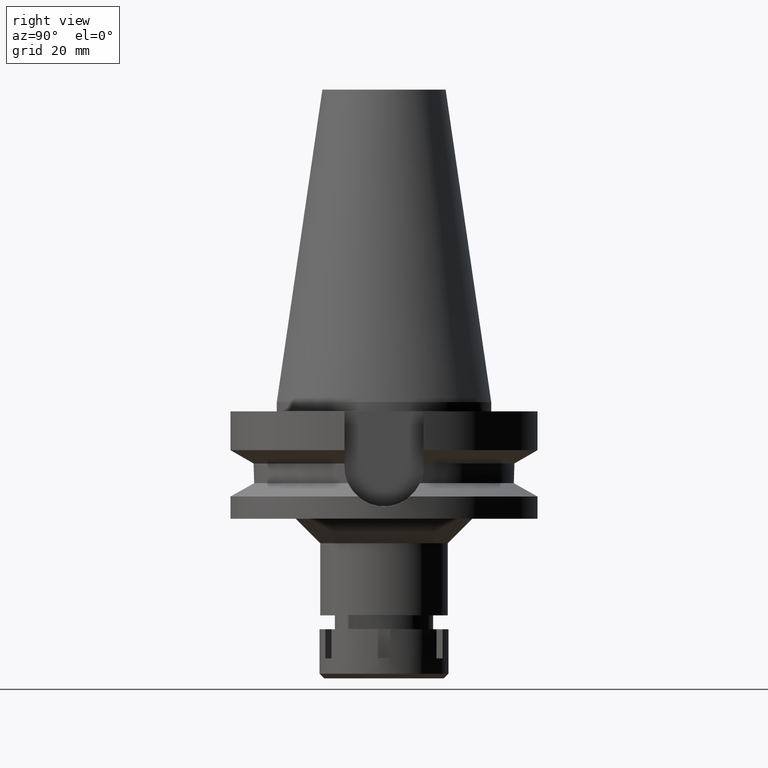
[diagram: clean part render]
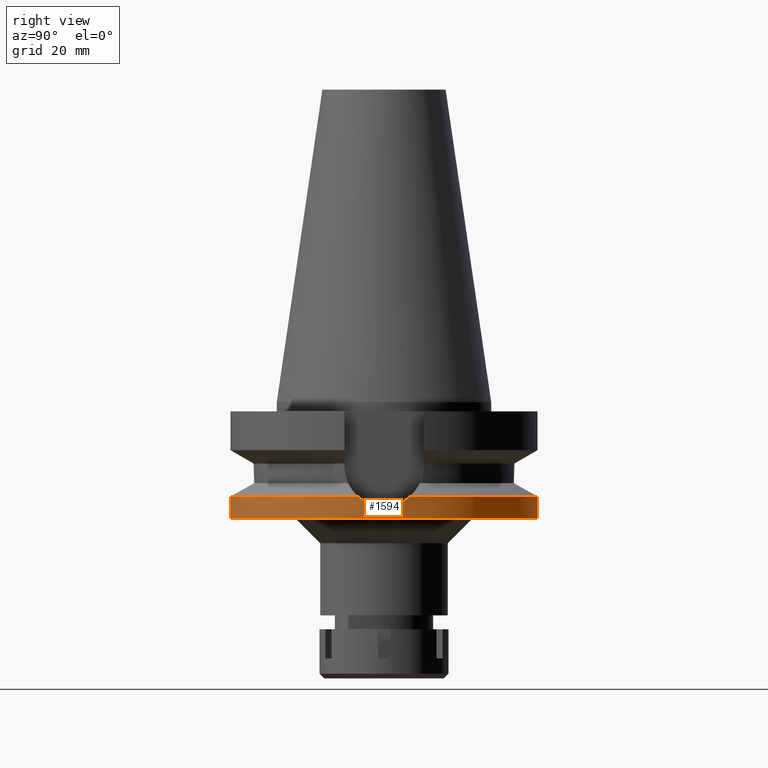
[diagram: same view with one face highlighted and labeled with its STEP entity id]
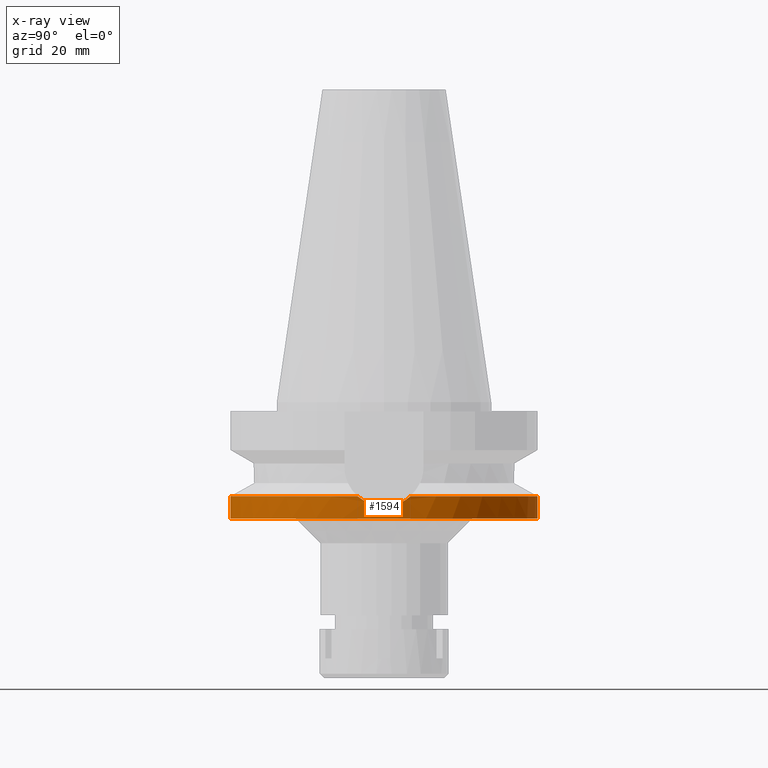
[diagram: x-ray of the same camera — body ghosted, the highlighted face saturated]
A machine part, right view. The second image highlights one B-rep face of the part: STEP entity #1594.
The next image is the same camera in x-ray: the body ghosted, the highlighted face saturated — about 0% of this face is hidden behind the body in this view.
In plain terms, the highlighted cylindrical surface (partial cylindrical patch) has radius 50 mm, axis along (0, 0, -1).
Its self-contained STEP definition (entity closure, byte-faithful):
#31 = CARTESIAN_POINT ( 'NONE',  ( 49.79081990968762739, -4.568854175502335302, -33.16033354866505078 ) ) ;
#73 = CARTESIAN_POINT ( 'NONE',  ( 49.26250064874000145, -8.556052234130000045, -30.73730776426999967 ) ) ;
#94 = CARTESIAN_POINT ( 'NONE',  ( 49.75683425659924097, -4.924090891237646872, -33.01938925290694016 ) ) ;
#115 = DIRECTION ( 'NONE',  ( 0.0000000000000000000, -1.000000000000000000, 0.0000000000000000000 ) ) ;
#138 = EDGE_CURVE ( 'NONE', #672, #2179, #2817, .T. ) ;
#179 = CARTESIAN_POINT ( 'NONE',  ( 0.0000000000000000000, 2.583882281520999630E-14, -38.00000000000000000 ) ) ;
#198 = DIRECTION ( 'NONE',  ( 0.9852500129747439050, -0.1711210446826074982, 0.0000000000000000000 ) ) ;
#301 = CARTESIAN_POINT ( 'NONE',  ( 0.0000000000000000000, -50.00000000000000000, -38.00000000000000000 ) ) ;
#325 = CARTESIAN_POINT ( 'NONE',  ( 49.78974543591909452, -4.580568652491073145, -33.15586994643632579 ) ) ;
#328 = FACE_OUTER_BOUND ( 'NONE', #2159, .T. ) ;
#342 = CARTESIAN_POINT ( 'NONE',  ( 49.84839303697045665, 3.895404147946214923, -33.39823680731314681 ) ) ;
#362 = CARTESIAN_POINT ( 'NONE',  ( 50.00000025826000183, 3.971629739691000439E-14, -34.00000117529000931 ) ) ;
#411 = VERTEX_POINT ( 'NONE', #301 ) ;
#445 = ORIENTED_EDGE ( 'NONE', *, *, #2516, .F. ) ;
#607 = CARTESIAN_POINT ( 'NONE',  ( 49.71773619479807138, -5.301485227038382320, -32.85669905118542289 ) ) ;
#622 = CARTESIAN_POINT ( 'NONE',  ( 49.66989089094737153, 5.761879092161682259, -32.66244013531180457 ) ) ;
#640 = CARTESIAN_POINT ( 'NONE',  ( 49.80631388213675592, 4.396616480804124372, -33.22463328520252901 ) ) ;
#661 = CARTESIAN_POINT ( 'NONE',  ( 50.00000025826000183, -0.7410411365161118091, -34.00000000000000000 ) ) ;
#672 = VERTEX_POINT ( 'NONE', #3404 ) ;
#681 = CARTESIAN_POINT ( 'NONE',  ( 49.49361225524737762, 7.116990881027253302, -31.87771967107655513 ) ) ;
#715 = DIRECTION ( 'NONE',  ( 0.0000000000000000000, 0.0000000000000000000, 1.000000000000000000 ) ) ;
#756 = DIRECTION ( 'NONE',  ( 0.0000000000000000000, 1.000000000000000000, 0.0000000000000000000 ) ) ;
#869 = AXIS2_PLACEMENT_3D ( 'NONE', #1569, #3278, #756 ) ;
#875 = CIRCLE ( 'NONE', #3449, 50.00000000000000000 ) ;
#901 = CARTESIAN_POINT ( 'NONE',  ( 49.82081573775742100, 4.229771872586245429, -33.28463879267050629 ) ) ;
#933 = CARTESIAN_POINT ( 'NONE',  ( 49.86958544424748396, 3.607938959231448806, -33.48470105267433183 ) ) ;
#956 = CARTESIAN_POINT ( 'NONE',  ( 0.0000000000000000000, -50.00000000000000000, -30.73730776426999967 ) ) ;
#1154 = CARTESIAN_POINT ( 'NONE',  ( 49.79512546279007523, 4.521580902138188307, -33.17822051819116780 ) ) ;
#1157 = DIRECTION ( 'NONE',  ( 0.0000000000000000000, 0.0000000000000000000, -1.000000000000000000 ) ) ;
#1175 = CARTESIAN_POINT ( 'NONE',  ( 49.38719707821788774, -7.838097531438589449, -31.37803591121276270 ) ) ;
#1194 = CARTESIAN_POINT ( 'NONE',  ( 49.62583282179959099, -6.100547697390552138, -32.46631986319250274 ) ) ;
#1202 = CARTESIAN_POINT ( 'NONE',  ( 0.0000000000000000000, -50.00000000000000000, -30.73730776426999967 ) ) ;
#1212 = CARTESIAN_POINT ( 'NONE',  ( 49.49361717516751469, -7.116953428373754775, -31.87774830592367792 ) ) ;
#1228 = CARTESIAN_POINT ( 'NONE',  ( 49.79173955587108225, 4.558792742342924420, -33.16415544153320383 ) ) ;
#1242 = B_SPLINE_CURVE_WITH_KNOTS ( 'NONE', 3,
 ( #73, #1175, #1212, #1194, #2585, #607, #1732, #94, #3111, #1718, #2279, #3440, #325, #2830, #31, #2334, #2258, #2046, #661, #3390 ),
 .UNSPECIFIED., .F., .F.,
 ( 4, 2, 2, 2, 1, 1, 1, 1, 2, 2, 2, 4 ),
 ( 0.0000000000000000000, 0.2500000000000376921, 0.3750000000000559552, 0.4375000000000652811, 0.4687500000000703326, 0.4843750000000722755, 0.4921875000000738853, 0.4960937500000746625, 0.4980468750000746070, 0.5000000000000744960, 0.7500000000000371925, 1.000000000000000000 ),
 .UNSPECIFIED. ) ;
#1334 = CARTESIAN_POINT ( 'NONE',  ( 50.00000025826000183, 3.971629739691000439E-14, -34.00000117529000931 ) ) ;
#1373 = DIRECTION ( 'NONE',  ( 0.0000000000000000000, 2.152361642122000014E-14, -1.000000000000000000 ) ) ;
#1426 = CARTESIAN_POINT ( 'NONE',  ( 49.79888465282288479, 4.479942984894370817, -33.19382580994893317 ) ) ;
#1461 = CARTESIAN_POINT ( 'NONE',  ( 49.98261161639165095, 1.500598209390599624, -33.93574248250271097 ) ) ;
#1556 = DIRECTION ( 'NONE',  ( 0.0000000000000000000, 0.0000000000000000000, -1.000000000000000000 ) ) ;
#1569 = CARTESIAN_POINT ( 'NONE',  ( 0.0000000000000000000, 0.0000000000000000000, -30.73730776426999967 ) ) ;
#1594 = ADVANCED_FACE ( 'NONE', ( #328 ), #3393, .T. ) ;
#1643 = LINE ( 'NONE', #2754, #3571 ) ;
#1718 = CARTESIAN_POINT ( 'NONE',  ( 49.77982781054843997, -4.687306582345327044, -33.11470790354110960 ) ) ;
#1732 = CARTESIAN_POINT ( 'NONE',  ( 49.73406078198834734, -5.148144078000751911, -32.92477821111351943 ) ) ;
#1751 = CARTESIAN_POINT ( 'NONE',  ( 49.26250064874000145, 8.556052234130000045, -30.73730776426999967 ) ) ;
#1958 = VERTEX_POINT ( 'NONE', #3139 ) ;
#1964 = ORIENTED_EDGE ( 'NONE', *, *, #2488, .F. ) ;
#1996 = LINE ( 'NONE', #1202, #3151 ) ;
#2046 = CARTESIAN_POINT ( 'NONE',  ( 49.98261383967735583, -1.500558363460896771, -33.93574400299029747 ) ) ;
#2113 = DIRECTION ( 'NONE',  ( 0.0000000000000000000, -1.000000000000000000, 0.0000000000000000000 ) ) ;
#2117 = EDGE_CURVE ( 'NONE', #2540, #1958, #1643, .T. ) ;
#2127 = ORIENTED_EDGE ( 'NONE', *, *, #138, .T. ) ;
#2159 = EDGE_LOOP ( 'NONE', ( #2127, #2564, #2646, #3293, #2718, #1964, #445 ) ) ;
#2179 = VERTEX_POINT ( 'NONE', #956 ) ;
#2258 = CARTESIAN_POINT ( 'NONE',  ( 49.91306816534680024, -3.031090855930614225, -33.66157117772377916 ) ) ;
#2279 = CARTESIAN_POINT ( 'NONE',  ( 49.78565799084184107, -4.624875436580165200, -33.13889740139463669 ) ) ;
#2314 = CARTESIAN_POINT ( 'NONE',  ( 49.79242228463828468, 4.551311719043213522, -33.16699222120168855 ) ) ;
#2334 = CARTESIAN_POINT ( 'NONE',  ( 49.86090890959889066, -3.802093052260596906, -33.45158313280833084 ) ) ;
#2359 = DIRECTION ( 'NONE',  ( 0.0000000000000000000, -2.250196262218999978E-14, -1.000000000000000000 ) ) ;
#2457 = AXIS2_PLACEMENT_3D ( 'NONE', #2986, #1556, #198 ) ;
#2488 = EDGE_CURVE ( 'NONE', #3304, #2985, #2700, .T. ) ;
#2516 = EDGE_CURVE ( 'NONE', #672, #3304, #1242, .T. ) ;
#2527 = CARTESIAN_POINT ( 'NONE',  ( 49.26250064874000145, 8.556052234130000045, -30.73730776426999967 ) ) ;
#2529 = CARTESIAN_POINT ( 'NONE',  ( 49.73975255186159927, 5.127509537116391236, -32.94811602927726568 ) ) ;
#2540 = VERTEX_POINT ( 'NONE', #3129 ) ;
#2545 = CARTESIAN_POINT ( 'NONE',  ( 50.00000025826000893, 0.7410501627638681477, -33.99999999999999289 ) ) ;
#2564 = ORIENTED_EDGE ( 'NONE', *, *, #3527, .T. ) ;
#2585 = CARTESIAN_POINT ( 'NONE',  ( 49.66533562087822418, -5.772269753275845794, -32.63579971293004434 ) ) ;
#2604 = CARTESIAN_POINT ( 'NONE',  ( 0.0000000000000000000, 2.583882281520999630E-14, 110.9900000000000091 ) ) ;
#2646 = ORIENTED_EDGE ( 'NONE', *, *, #2735, .T. ) ;
#2700 = B_SPLINE_CURVE_WITH_KNOTS ( 'NONE', 3,
 ( #362, #2545, #1461, #3410, #3167, #933, #342, #901, #640, #1426, #1154, #3186, #2314, #1228, #2529, #622, #681, #2810, #1751 ),
 .UNSPECIFIED., .F., .F.,
 ( 4, 2, 2, 1, 1, 1, 1, 1, 2, 2, 2, 4 ),
 ( 0.0000000000000000000, 0.2499999999999724110, 0.3749999999999585887, 0.4374999999999513167, 0.4687499999999478750, 0.4843749999999464317, 0.4921874999999460987, 0.4960937499999464317, 0.4980468749999469869, 0.4999999999999474865, 0.7499999999999736877, 1.000000000000000000 ),
 .UNSPECIFIED. ) ;
#2718 = ORIENTED_EDGE ( 'NONE', *, *, #3198, .T. ) ;
#2735 = EDGE_CURVE ( 'NONE', #411, #1958, #875, .T. ) ;
#2754 = CARTESIAN_POINT ( 'NONE',  ( 0.0000000000000000000, 50.00000000000000000, -30.73730776426999967 ) ) ;
#2810 = CARTESIAN_POINT ( 'NONE',  ( 49.38719528046158302, 7.838107882188747766, -31.37802667383755306 ) ) ;
#2817 = CIRCLE ( 'NONE', #2457, 50.00000000000000000 ) ;
#2830 = CARTESIAN_POINT ( 'NONE',  ( 49.79055600884194632, -4.571733192427990922, -33.15923719343485487 ) ) ;
#2870 = AXIS2_PLACEMENT_3D ( 'NONE', #2604, #1157, #115 ) ;
#2985 = VERTEX_POINT ( 'NONE', #2527 ) ;
#2986 = CARTESIAN_POINT ( 'NONE',  ( 0.0000000000000000000, 0.0000000000000000000, -30.73730776426999967 ) ) ;
#3086 = CIRCLE ( 'NONE', #869, 50.00000000000000000 ) ;
#3111 = CARTESIAN_POINT ( 'NONE',  ( 49.76779264236105860, -4.813552442422227351, -33.06481752115561079 ) ) ;
#3129 = CARTESIAN_POINT ( 'NONE',  ( 0.0000000000000000000, 50.00000000000000000, -30.73730776426999967 ) ) ;
#3139 = CARTESIAN_POINT ( 'NONE',  ( 0.0000000000000000000, 50.00000000000000000, -38.00000000000000000 ) ) ;
#3151 = VECTOR ( 'NONE', #2359, 1000.000000000000000 ) ;
#3167 = CARTESIAN_POINT ( 'NONE',  ( 49.90870988845126988, 3.032621471015613412, -33.64335829083100293 ) ) ;
#3186 = CARTESIAN_POINT ( 'NONE',  ( 49.79350482948117929, 4.539420145949499386, -33.17148930652394512 ) ) ;
#3198 = EDGE_CURVE ( 'NONE', #2540, #2985, #3086, .T. ) ;
#3278 = DIRECTION ( 'NONE',  ( 0.0000000000000000000, 0.0000000000000000000, -1.000000000000000000 ) ) ;
#3293 = ORIENTED_EDGE ( 'NONE', *, *, #2117, .F. ) ;
#3304 = VERTEX_POINT ( 'NONE', #1334 ) ;
#3390 = CARTESIAN_POINT ( 'NONE',  ( 50.00000025826000183, 3.971629739691000439E-14, -34.00000117529000931 ) ) ;
#3393 = CYLINDRICAL_SURFACE ( 'NONE', #2870, 50.00000000000000000 ) ;
#3404 = CARTESIAN_POINT ( 'NONE',  ( 49.26250064874000145, -8.556052234130000045, -30.73730776426999967 ) ) ;
#3410 = CARTESIAN_POINT ( 'NONE',  ( 49.93044569078668360, 2.648572747274305694, -33.73009097169495618 ) ) ;
#3440 = CARTESIAN_POINT ( 'NONE',  ( 49.78852623003842126, -4.593834391904469960, -33.15080591698242074 ) ) ;
#3449 = AXIS2_PLACEMENT_3D ( 'NONE', #179, #715, #2113 ) ;
#3527 = EDGE_CURVE ( 'NONE', #2179, #411, #1996, .T. ) ;
#3571 = VECTOR ( 'NONE', #1373, 1000.000000000000000 ) ;